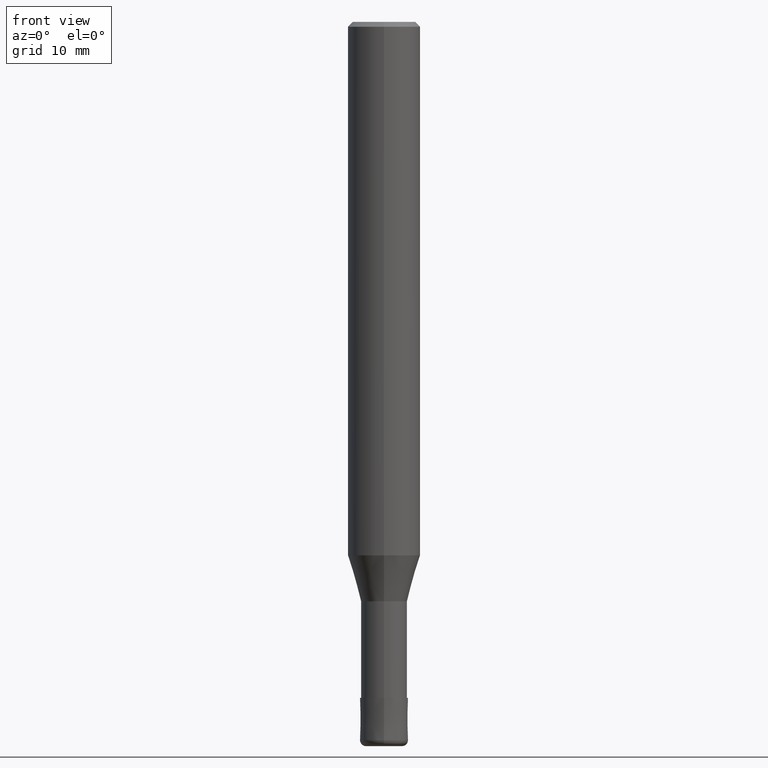
[diagram: clean part render]
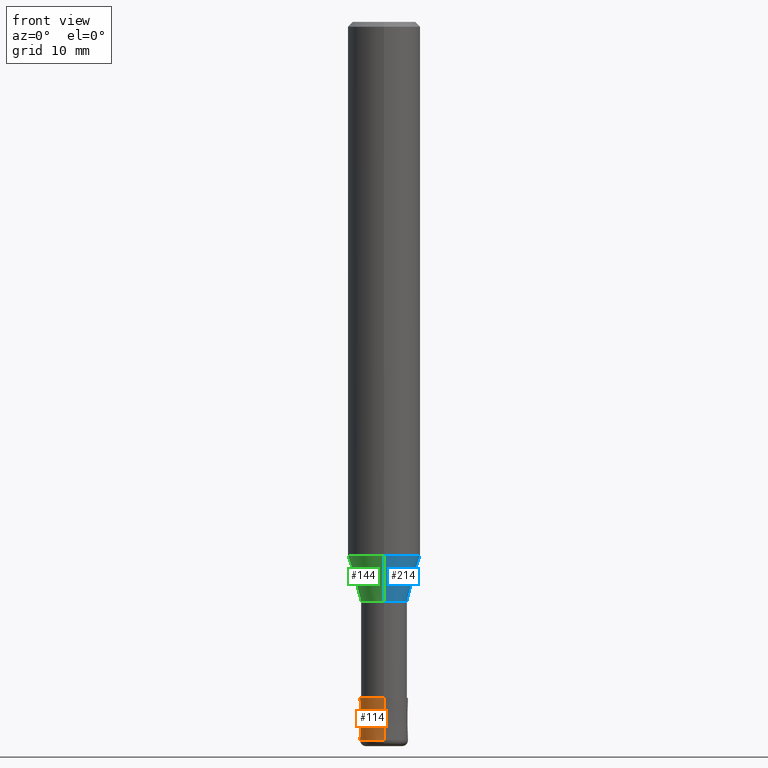
[diagram: same view with three faces highlighted in distinct colors, each labeled with its STEP entity id]
A machine part, front view with three faces highlighted in distinct colors.
Their STEP definitions:

[orange] entity #114 — the highlighted conical surface has half-angle 0.002 deg.
#114=ADVANCED_FACE('',(#268),#269,.T.);
#116=VERTEX_POINT('',#271);
#128=EDGE_CURVE('',#116,#150,#284,.T.);
#134=VERTEX_POINT('',#290);
#150=VERTEX_POINT('',#309);
#166=EDGE_CURVE('',#150,#178,#327,.T.);
#178=VERTEX_POINT('',#340);
#204=EDGE_CURVE('',#134,#178,#369,.T.);
#212=EDGE_CURVE('',#134,#116,#377,.T.);
#268=FACE_OUTER_BOUND('',#436,.T.);
#269=CONICAL_SURFACE('',#437,1.99995,2.85714285636509E-005);
#271=CARTESIAN_POINT('',(2.44909024700937E-016,-1.9999,-56.0));
#284=CIRCLE('',#455,1.9999);
#290=CARTESIAN_POINT('',(2.44921270764475E-016,-2.0,-59.5));
#309=CARTESIAN_POINT('',(0.0,1.9999,-56.0));
#327=LINE('',#506,#507);
#340=CARTESIAN_POINT('',(0.0,2.0,-59.5));
#369=CIRCLE('',#560,2.0);
#377=LINE('',#572,#573);
#436=EDGE_LOOP('',(#630,#631,#632,#633));
#437=AXIS2_PLACEMENT_3D('',#634,#635,#636);
#455=AXIS2_PLACEMENT_3D('',#644,#645,#646);
#506=CARTESIAN_POINT('',(-2.44915147732706E-016,1.99995,-57.75));
#507=VECTOR('',#705,1.0);
#560=AXIS2_PLACEMENT_3D('',#755,#756,#757);
#572=CARTESIAN_POINT('',(2.44915147732706E-016,-1.99995,-57.75));
#573=VECTOR('',#762,1.0);
#630=ORIENTED_EDGE('',*,*,#166,.T.);
#631=ORIENTED_EDGE('',*,*,#204,.F.);
#632=ORIENTED_EDGE('',*,*,#212,.T.);
#633=ORIENTED_EDGE('',*,*,#128,.T.);
#634=CARTESIAN_POINT('',(0.0,0.0,-57.75));
#635=DIRECTION('',(0.0,-0.0,-1.0));
#636=DIRECTION('',(0.0,1.0,0.0));
#644=CARTESIAN_POINT('',(0.0,0.0,-56.0));
#645=DIRECTION('',(0.0,0.0,-1.0));
#646=DIRECTION('',(0.0,1.0,0.0));
#705=DIRECTION('',(-3.49887529520687E-021,2.85714285597636E-005,-0.999999999591837));
#755=CARTESIAN_POINT('',(0.0,0.0,-59.5));
#756=DIRECTION('',(0.0,0.0,-1.0));
#757=DIRECTION('',(0.0,1.0,0.0));
#762=DIRECTION('',(-3.49887529520687E-021,2.85714285597636E-005,0.999999999591837));

[blue] entity #214 — the highlighted conical surface has half-angle 16.001 deg.
#118=EDGE_CURVE('',#126,#190,#273,.T.);
#120=VERTEX_POINT('',#275);
#126=VERTEX_POINT('',#282);
#132=EDGE_CURVE('',#126,#120,#288,.T.);
#140=EDGE_CURVE('',#190,#182,#297,.T.);
#146=EDGE_CURVE('',#182,#120,#304,.T.);
#182=VERTEX_POINT('',#344);
#190=VERTEX_POINT('',#353);
#214=ADVANCED_FACE('',(#379),#380,.T.);
#273=LINE('',#442,#443);
#275=CARTESIAN_POINT('',(3.67375783114944E-016,-2.99995,-44.199));
#282=CARTESIAN_POINT('',(0.0,2.99995,-44.199));
#288=CIRCLE('',#460,2.99995);
#297=CIRCLE('',#469,1.90995);
#304=LINE('',#477,#478);
#344=CARTESIAN_POINT('',(2.33893690548305E-016,-1.90995,-48.0));
#353=CARTESIAN_POINT('',(0.0,1.90995,-48.0));
#379=FACE_OUTER_BOUND('',#575,.T.);
#380=CONICAL_SURFACE('',#576,2.45495,0.279272319969089);
#442=CARTESIAN_POINT('',(-3.00634736831625E-016,2.45495,-46.0995));
#443=VECTOR('',#637,1.0);
#460=AXIS2_PLACEMENT_3D('',#647,#648,#649);
#469=AXIS2_PLACEMENT_3D('',#659,#660,#661);
#477=CARTESIAN_POINT('',(3.00634736831625E-016,-2.45495,-46.0995));
#478=VECTOR('',#670,1.0);
#575=EDGE_LOOP('',(#764,#765,#766,#767));
#576=AXIS2_PLACEMENT_3D('',#768,#769,#770);
#637=DIRECTION('',(3.37570376370609E-017,-0.275656234607102,-0.961256282331738));
#647=CARTESIAN_POINT('',(0.0,0.0,-44.199));
#648=DIRECTION('',(0.0,0.0,-1.0));
#649=DIRECTION('',(0.0,1.0,0.0));
#659=CARTESIAN_POINT('',(0.0,0.0,-48.0));
#660=DIRECTION('',(0.0,0.0,-1.0));
#661=DIRECTION('',(0.0,1.0,0.0));
#670=DIRECTION('',(3.37570376370609E-017,-0.275656234607102,0.961256282331738));
#764=ORIENTED_EDGE('',*,*,#118,.F.);
#765=ORIENTED_EDGE('',*,*,#132,.T.);
#766=ORIENTED_EDGE('',*,*,#146,.F.);
#767=ORIENTED_EDGE('',*,*,#140,.F.);
#768=CARTESIAN_POINT('',(0.0,0.0,-46.0995));
#769=DIRECTION('',(-0.0,-0.0,1.0));
#770=DIRECTION('',(0.0,1.0,0.0));

[green] entity #144 — the highlighted conical surface has half-angle 16.001 deg.
#118=EDGE_CURVE('',#126,#190,#273,.T.);
#120=VERTEX_POINT('',#275);
#126=VERTEX_POINT('',#282);
#144=ADVANCED_FACE('',(#301),#302,.T.);
#146=EDGE_CURVE('',#182,#120,#304,.T.);
#160=EDGE_CURVE('',#120,#126,#321,.T.);
#182=VERTEX_POINT('',#344);
#190=VERTEX_POINT('',#353);
#220=EDGE_CURVE('',#182,#190,#387,.T.);
#273=LINE('',#442,#443);
#275=CARTESIAN_POINT('',(3.67375783114944E-016,-2.99995,-44.199));
#282=CARTESIAN_POINT('',(0.0,2.99995,-44.199));
#301=FACE_OUTER_BOUND('',#473,.T.);
#302=CONICAL_SURFACE('',#474,2.45495,0.279272319969089);
#304=LINE('',#477,#478);
#321=CIRCLE('',#497,2.99995);
#344=CARTESIAN_POINT('',(2.33893690548305E-016,-1.90995,-48.0));
#353=CARTESIAN_POINT('',(0.0,1.90995,-48.0));
#387=CIRCLE('',#584,1.90995);
#442=CARTESIAN_POINT('',(-3.00634736831625E-016,2.45495,-46.0995));
#443=VECTOR('',#637,1.0);
#473=EDGE_LOOP('',(#663,#664,#665,#666));
#474=AXIS2_PLACEMENT_3D('',#667,#668,#669);
#477=CARTESIAN_POINT('',(3.00634736831625E-016,-2.45495,-46.0995));
#478=VECTOR('',#670,1.0);
#497=AXIS2_PLACEMENT_3D('',#696,#697,#698);
#584=AXIS2_PLACEMENT_3D('',#779,#780,#781);
#637=DIRECTION('',(3.37570376370609E-017,-0.275656234607102,-0.961256282331738));
#663=ORIENTED_EDGE('',*,*,#118,.T.);
#664=ORIENTED_EDGE('',*,*,#220,.F.);
#665=ORIENTED_EDGE('',*,*,#146,.T.);
#666=ORIENTED_EDGE('',*,*,#160,.T.);
#667=CARTESIAN_POINT('',(0.0,0.0,-46.0995));
#668=DIRECTION('',(-0.0,-0.0,1.0));
#669=DIRECTION('',(0.0,1.0,0.0));
#670=DIRECTION('',(3.37570376370609E-017,-0.275656234607102,0.961256282331738));
#696=CARTESIAN_POINT('',(0.0,0.0,-44.199));
#697=DIRECTION('',(0.0,0.0,-1.0));
#698=DIRECTION('',(0.0,1.0,0.0));
#779=CARTESIAN_POINT('',(0.0,0.0,-48.0));
#780=DIRECTION('',(0.0,0.0,-1.0));
#781=DIRECTION('',(0.0,1.0,0.0));